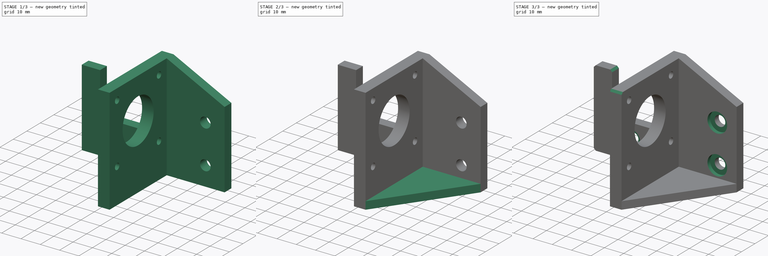
[diagram: build sequence overview — one tinted view per stage of 3, left to right]
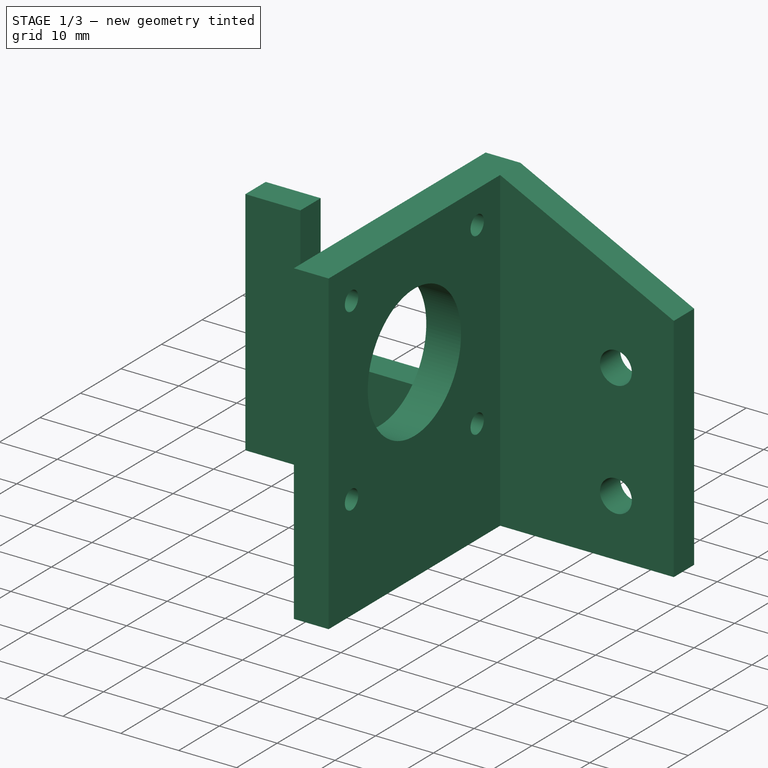
[diagram: stage 1 of 3 — iso view after this stage's code; geometry added in this stage tinted green]
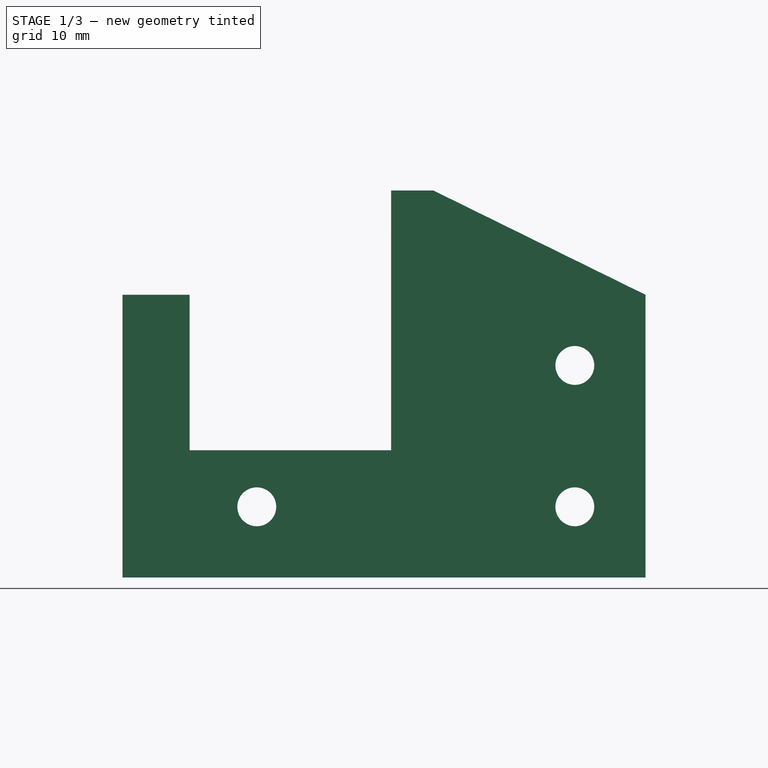
[diagram: stage 1 of 3 — front view after this stage's code; geometry added in this stage tinted green]
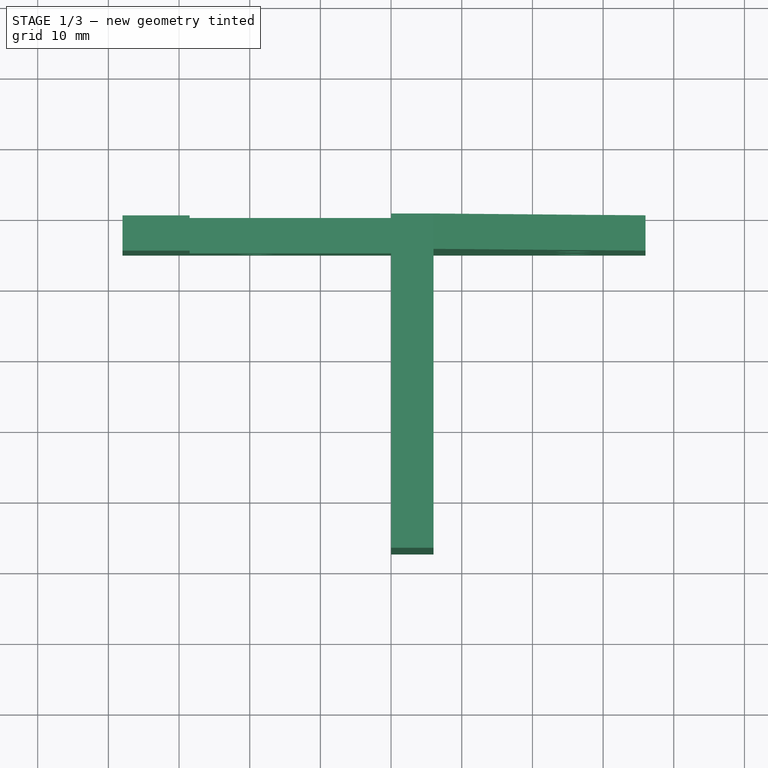
[diagram: stage 1 of 3 — top view after this stage's code; geometry added in this stage tinted green]
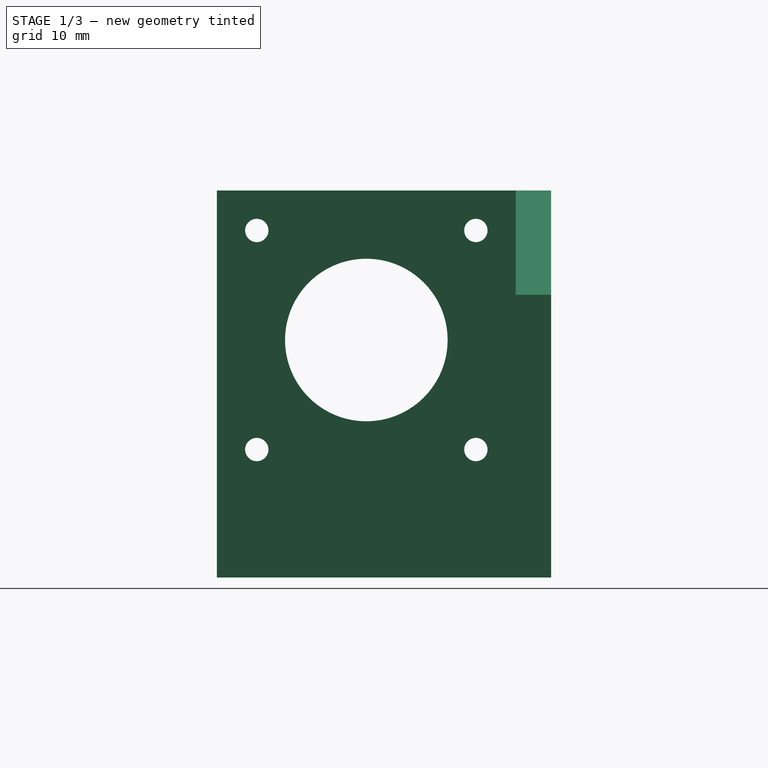
[diagram: stage 1 of 3 — right view after this stage's code; geometry added in this stage tinted green]
FCSTD DOCUMENT  (FreeCAD 0.18R4 (GitTag))
Label: _Y_Motor_Mount
License: All rights reserved
LicenseURL: http://en.wikipedia.org/wiki/All_rights_reserved
objects: Sketcher::SketchObject×4, PartDesign::Pad×3, PartDesign::Pocket×1, PartDesign::Chamfer×1, PartDesign::Body×1
note: 14 computed .brp shape members not serialized (recipe doc carries the construction recipe); baked Part::Feature solids carry a one-line shape summary decoded from their .brp

FEATURE [Sketcher::SketchObject] Sketch005
  MapMode = 5
  Placement = pos=(0,0,0) rot=(1,0,0;1.5708rad)
  Support = -> [XZ_Plane039]
  expr: Constraints[21] = Sketch003.Constraints.hight
  sketch-geometry (14):
    g0: LineSegment StartX=-38 StartY=40 StartZ=0 EndX=-28.5 EndY=40 EndZ=0
    g1: LineSegment StartX=-28.5 StartY=40 StartZ=0 EndX=-28.5 EndY=18 EndZ=0
    g2: LineSegment StartX=-28.5 StartY=18 StartZ=0 EndX=0 EndY=18 EndZ=0
    g3: LineSegment StartX=0 StartY=18 StartZ=0 EndX=0 EndY=54.75 EndZ=0
    g4: LineSegment StartX=0 StartY=54.75 StartZ=0 EndX=6 EndY=54.75 EndZ=0
    g5: LineSegment StartX=6 StartY=54.75 StartZ=0 EndX=36 EndY=40 EndZ=0
    g6: LineSegment StartX=36 StartY=40 StartZ=0 EndX=36 EndY=0 EndZ=0
    g7: LineSegment StartX=36 StartY=0 StartZ=0 EndX=-38 EndY=0 EndZ=0
    g8: LineSegment StartX=-38 StartY=0 StartZ=0 EndX=-38 EndY=40 EndZ=0
    g9: LineSegment [constr] StartX=-19 StartY=10 StartZ=0 EndX=26 EndY=10 EndZ=0
    g10: LineSegment [constr] StartX=26 StartY=10 StartZ=0 EndX=26 EndY=30 EndZ=0
    g11: Circle CenterX=-19 CenterY=10 CenterZ=0 NormalX=0 NormalY=0 NormalZ=1 AngleXU=0 Radius=2.75
    g12: Circle CenterX=26 CenterY=30 CenterZ=0 NormalX=0 NormalY=0 NormalZ=1 AngleXU=0 Radius=2.75
    g13: Circle CenterX=26 CenterY=10 CenterZ=0 NormalX=0 NormalY=0 NormalZ=1 AngleXU=0 Radius=2.75
  constraints (40):
    c: Horizontal(g0)
    c: Coincident(g0,g1)
    c: Coincident(g1,g2)
    c: Coincident(g2,g3)
    c: Vertical(g3)
    c: Coincident(g3,g4)
    c: Coincident(g4,g5)
    c: Coincident(g5,g6)
    c: PointOnObject(g6,g-1)
    c: Vertical(g6)
    c: Coincident(g6,g7)
    c: Horizontal(g7)
    c: Coincident(g7,g8)
    c: Coincident(g8,g0)
    c: Vertical(g8)
    c: Vertical(g1)
    c: Horizontal(g2)
    c: Horizontal(g4)
    c: PointOnObject(g2,g-2)
    c: DistanceY(g6,g6) = 40
    c: DistanceX(g4,g4) = 6
    c: DistanceY(g6,g4) = 54.75
    c: Horizontal(g9)
    c: DistanceX(g-1,g9) = 26
    c: DistanceX(g-1,g6) = 36
    c: DistanceX(g7,g-1) = 38
    c: DistanceX(g9,g-1) = 19
    c: Coincident(g10,g9)
    c: Vertical(g10)
    c: DistanceY(g10,g10) = 20
    c: DistanceY(g6,g9) = 10
    c: Coincident(g11,g9)
    c: Coincident(g12,g10)
    c: Coincident(g13,g9)
    c: Diameter(g11) = 5.5
    c: Equal(g11,g13)
    c: Equal(g11,g12)
    c: Equal(g6,g8)
    c: DistanceX(g0,g0) = 9.5
    c: DistanceY(g1,g1) = 22
FEATURE [Sketcher::SketchObject] Sketch003
  MapMode = 5
  Placement = pos=(0,0,0) rot=(0.57735,0.57735,0.57735;2.0944rad)
  Support = -> [YZ_Plane039]
  sketch-geometry (15):
    g0: LineSegment StartX=-47.3 StartY=54.75 StartZ=0 EndX=0 EndY=54.75 EndZ=0
    g1: LineSegment StartX=0 StartY=54.75 StartZ=0 EndX=0 EndY=0 EndZ=0
    g2: LineSegment StartX=0 StartY=0 StartZ=0 EndX=-47.3 EndY=0 EndZ=0
    g3: LineSegment StartX=-47.3 StartY=0 StartZ=0 EndX=-47.3 EndY=54.75 EndZ=0
    g4: LineSegment [constr] StartX=-41.65 StartY=49.1 StartZ=0 EndX=-10.65 EndY=49.1 EndZ=0
    g5: LineSegment [constr] StartX=-10.65 StartY=49.1 StartZ=0 EndX=-10.65 EndY=18.1 EndZ=0
    g6: LineSegment [constr] StartX=-10.65 StartY=18.1 StartZ=0 EndX=-41.65 EndY=18.1 EndZ=0
    g7: LineSegment [constr] StartX=-41.65 StartY=18.1 StartZ=0 EndX=-41.65 EndY=49.1 EndZ=0
    g8: LineSegment [constr] StartX=-41.65 StartY=49.1 StartZ=0 EndX=-10.65 EndY=18.1 EndZ=0
    g9: LineSegment [constr] StartX=-41.65 StartY=18.1 StartZ=0 EndX=-10.65 EndY=49.1 EndZ=0
    g10: Circle CenterX=-26.15 CenterY=33.6 CenterZ=0 NormalX=0 NormalY=0 NormalZ=1 AngleXU=0 Radius=11.5
    g11: Circle CenterX=-41.65 CenterY=49.1 CenterZ=0 NormalX=0 NormalY=0 NormalZ=1 AngleXU=0 Radius=1.65
    g12: Circle CenterX=-10.65 CenterY=49.1 CenterZ=0 NormalX=0 NormalY=0 NormalZ=1 AngleXU=0 Radius=1.65
    g13: Circle CenterX=-41.65 CenterY=18.1 CenterZ=0 NormalX=0 NormalY=0 NormalZ=1 AngleXU=0 Radius=1.65
    g14: Circle CenterX=-10.65 CenterY=18.1 CenterZ=0 NormalX=0 NormalY=0 NormalZ=1 AngleXU=0 Radius=1.65
  constraints (38):
    c: Coincident(g0,g1)
    c: Coincident(g1,g2)
    c: Coincident(g2,g3)
    c: Coincident(g3,g0)
    c: Horizontal(g0)
    c: Horizontal(g2)
    c: Vertical(g1)
    c: Vertical(g3)
    c: DistanceX(g0,g0) = 47.3
    c: DistanceY(g1,g1) = 54.75  'hight'
    c: Coincident(g4,g5)
    c: Coincident(g5,g6)
    c: Coincident(g6,g7)
    c: Coincident(g7,g4)
    c: Horizontal(g4)
    c: Horizontal(g6)
    c: Vertical(g5)
    c: Vertical(g7)
    c: Coincident(g1,g-1)
    c: Equal(g6,g7)
    c: Coincident(g8,g4)
    c: Coincident(g8,g5)
    c: Coincident(g9,g6)
    c: Coincident(g9,g4)
    c: PointOnObject(g10,g8)
    c: PointOnObject(g10,g9)
    c: Diameter(g10) = 23
    c: Coincident(g11,g4)
    c: Coincident(g12,g4)
    c: Coincident(g13,g6)
    c: Coincident(g14,g5)
    c: Equal(g14,g12)
    c: Equal(g12,g11)
    c: Equal(g11,g13)
    c: Diameter(g13) = 3.3
    c: DistanceX(g0,g10) = 21.15
    c: DistanceY(g10,g0) = 21.15
    c: DistanceX(g6,g6) = 31
FEATURE [Sketcher::SketchObject] Sketch004
  MapMode = 5
  Support = -> [XY_Plane039]
  sketch-geometry (6):
    g0: LineSegment StartX=-19 StartY=0 StartZ=0 EndX=-19 EndY=-5.01716 EndZ=0
    g1: LineSegment StartX=-19 StartY=-5.01716 StartZ=0 EndX=0 EndY=-47.3 EndZ=0
    g2: LineSegment StartX=0 StartY=-47.3 StartZ=0 EndX=6 EndY=-47.3 EndZ=0
    g3: LineSegment StartX=6 StartY=-47.3 StartZ=0 EndX=36 EndY=-5 EndZ=0
    g4: LineSegment StartX=36 StartY=-5 StartZ=0 EndX=36 EndY=0 EndZ=0
    g5: LineSegment StartX=36 StartY=0 StartZ=0 EndX=-19 EndY=0 EndZ=0
  constraints (17):
    c: PointOnObject(g0,g-1)
    c: Coincident(g0,g1)
    c: PointOnObject(g1,g-2)
    c: Coincident(g1,g2)
    c: Horizontal(g2)
    c: Coincident(g2,g3)
    c: Coincident(g3,g4)
    c: PointOnObject(g4,g-1)
    c: Coincident(g4,g5)
    c: DistanceX(g2,g2) = 6
    c: DistanceY(g1,g-1) = 47.3
    c: Vertical(g0)
    c: Vertical(g4)
    c: Coincident(g5,g0)
    c: DistanceX(g-1,g4) = 36
    c: DistanceY(g3,g4) = 5
    c: DistanceX(g0,g-1) = 19
FEATURE [PartDesign::Pad] Pad001
  Length = 6
  Length2 = 100
  Placement = pos=(0,0,0) rot=(0.57735,0.57735,0.57735;2.0944rad)
  Profile = -> Sketch003
  Type = 0
FEATURE [PartDesign::Pad] Pad003
  BaseFeature = -> Pad001
  Length = 5
  Length2 = 100
  Placement = pos=(0,0,0) rot=(0.57735,0.57735,0.57735;2.0944rad)
  Profile = -> Sketch005
  Type = 0
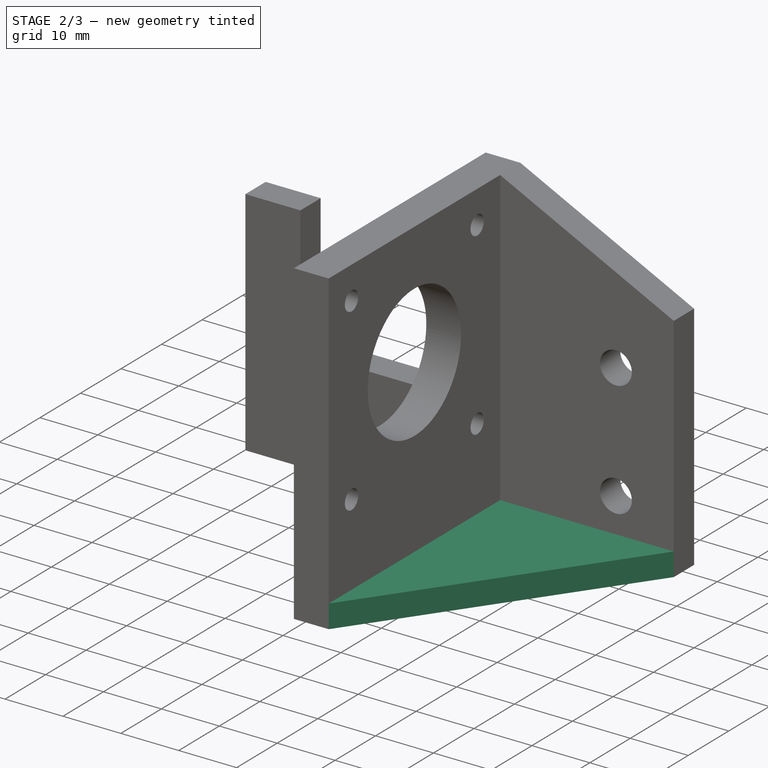
[diagram: stage 2 of 3 — iso view after this stage's code; geometry added in this stage tinted green]
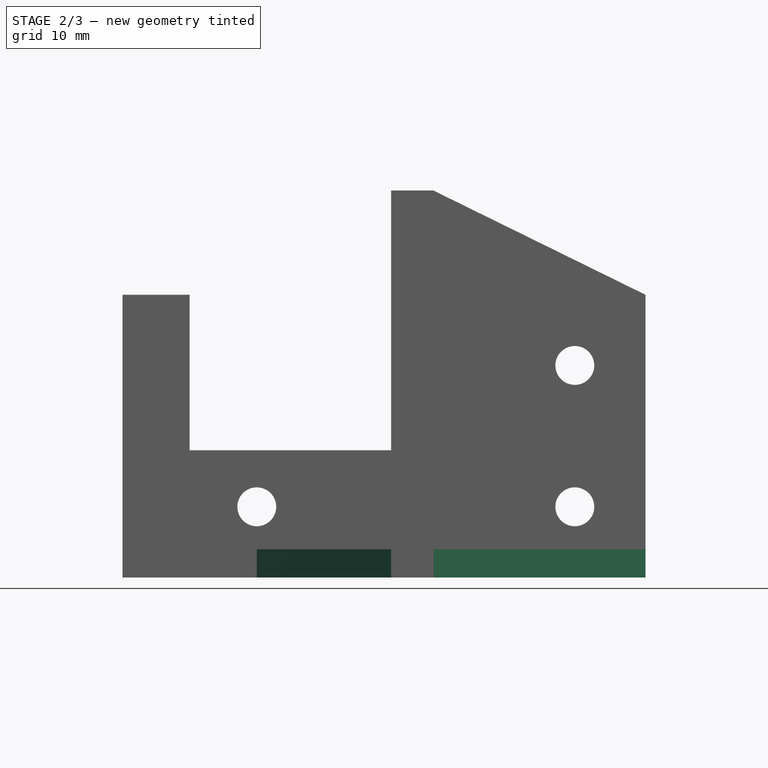
[diagram: stage 2 of 3 — front view after this stage's code; geometry added in this stage tinted green]
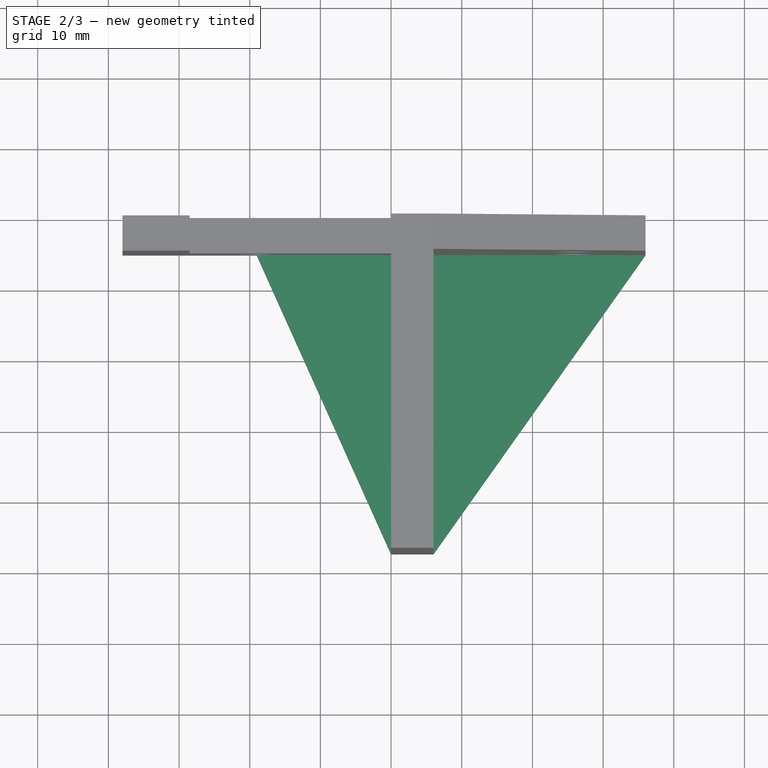
[diagram: stage 2 of 3 — top view after this stage's code; geometry added in this stage tinted green]
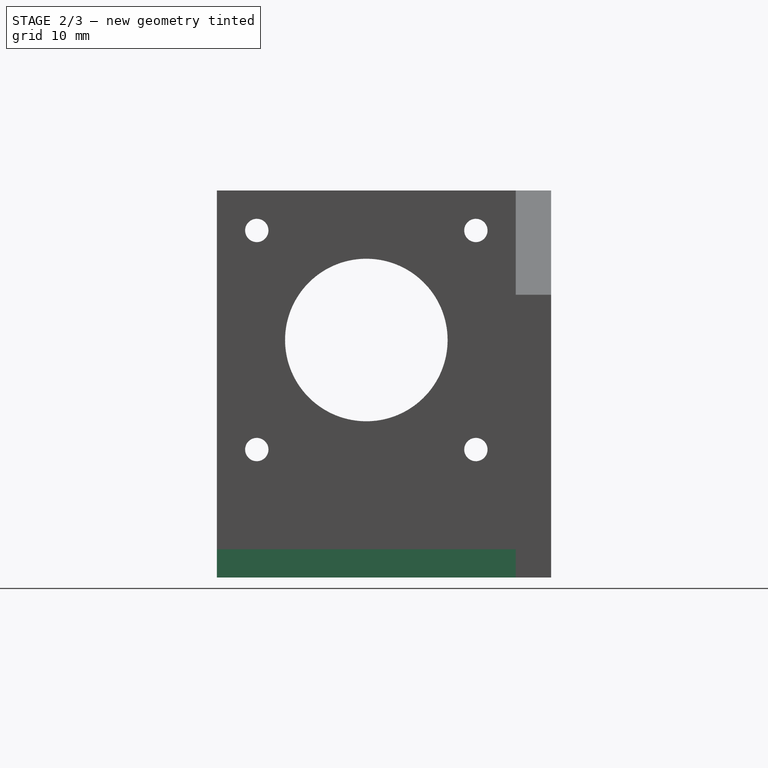
[diagram: stage 2 of 3 — right view after this stage's code; geometry added in this stage tinted green]
FEATURE [PartDesign::Pad] Pad002
  BaseFeature = -> Pad003
  Length = 4
  Length2 = 100
  Placement = pos=(0,0,0) rot=(0.57735,0.57735,0.57735;2.0944rad)
  Profile = -> Sketch004
  Type = 0
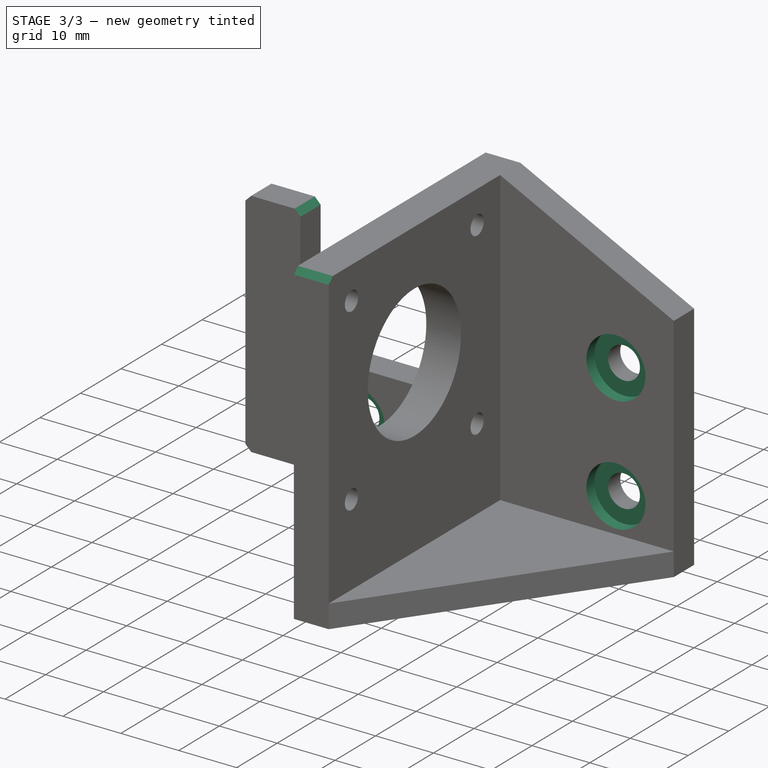
[diagram: stage 3 of 3 — iso view after this stage's code; geometry added in this stage tinted green]
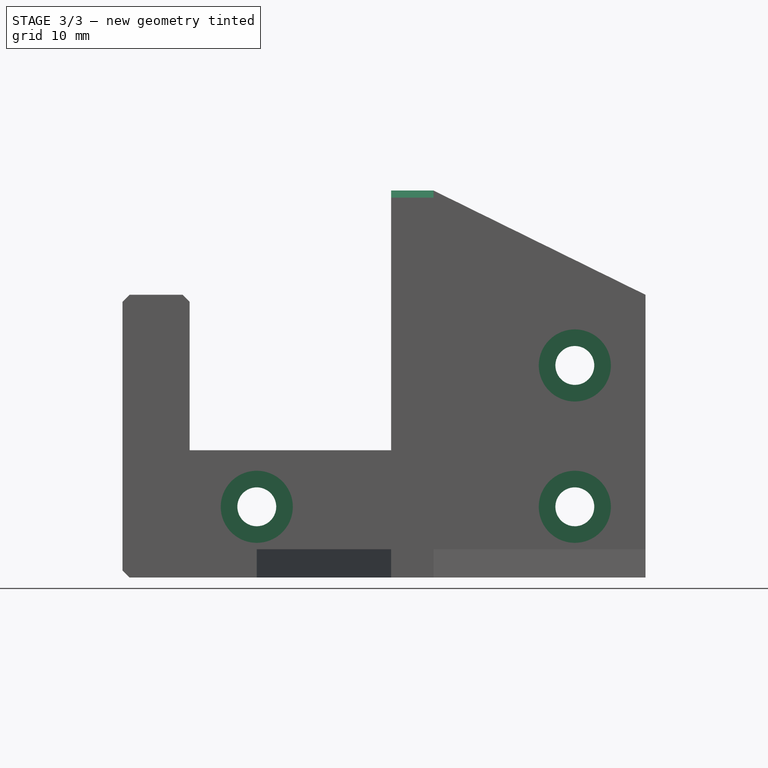
[diagram: stage 3 of 3 — front view after this stage's code; geometry added in this stage tinted green]
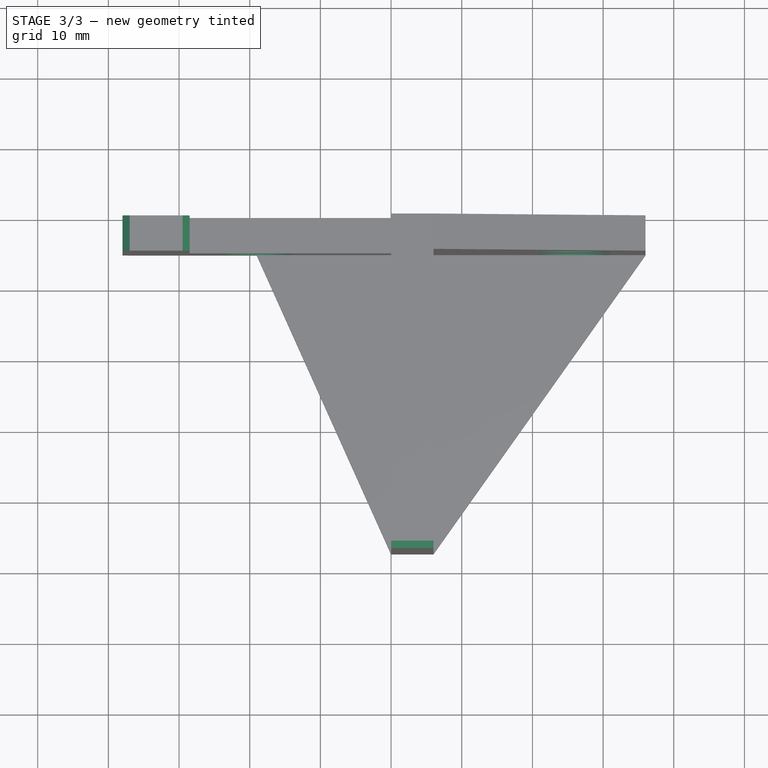
[diagram: stage 3 of 3 — top view after this stage's code; geometry added in this stage tinted green]
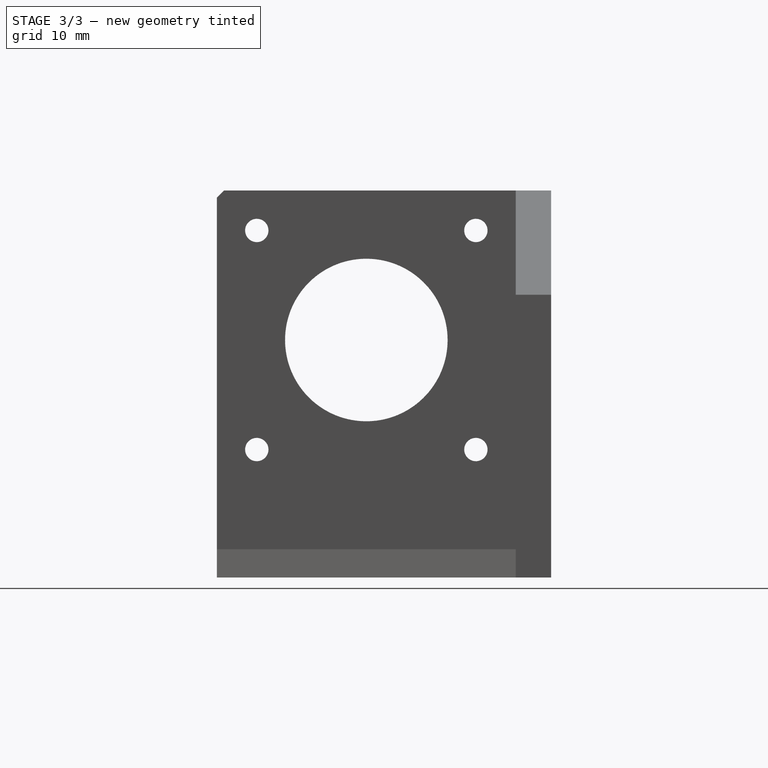
[diagram: stage 3 of 3 — right view after this stage's code; geometry added in this stage tinted green]
FEATURE [Sketcher::SketchObject] Sketch
  AttachmentOffset = pos=(0,0,5) rot=(0,0,1;0rad)
  ExternalGeometry = -> [Pad002]
  MapMode = 5
  Placement = pos=(0,-5,-1.1e-15) rot=(1,0,0;1.5708rad)
  Support = -> [XZ_Plane039]
  sketch-geometry (3):
    g0: Circle CenterX=-19 CenterY=10 CenterZ=0 NormalX=0 NormalY=0 NormalZ=1 AngleXU=0 Radius=5.1
    g1: Circle CenterX=26 CenterY=30 CenterZ=0 NormalX=0 NormalY=0 NormalZ=1 AngleXU=0 Radius=5.1
    g2: Circle CenterX=26 CenterY=10 CenterZ=0 NormalX=0 NormalY=0 NormalZ=1 AngleXU=0 Radius=5.1
  constraints (6):
    c: Coincident(g0,g-3)
    c: Coincident(g1,g-4)
    c: Coincident(g2,g-5)
    c: Equal(g0,g1)
    c: Equal(g1,g2)
    c: Diameter(g0) = 10.2
FEATURE [PartDesign::Pocket] Pocket
  BaseFeature = -> Pad002
  Length = 2
  Length2 = 100
  Placement = pos=(0,0,0) rot=(0.57735,0.57735,0.57735;2.0944rad)
  Profile = -> Sketch
  Type = 0
FEATURE [PartDesign::Chamfer] Chamfer
  Base = -> Pocket [Edge4,Edge65,Edge63,Edge61]
  BaseFeature = -> Pocket
  Placement = pos=(0,0,0) rot=(0.57735,0.57735,0.57735;2.0944rad)
  Size = 1
FEATURE [PartDesign::Body] Body001082  label="Y_MotorMount"
  Group = -> [Sketch003,Pad001,Sketch005,Pad003,Sketch004,Pad002,Sketch,Pocket,Chamfer]
  Origin = -> Origin039
  Placement = pos=(-15,170,-40) rot=(0,0,1;0rad)
  Tip = -> Chamfer
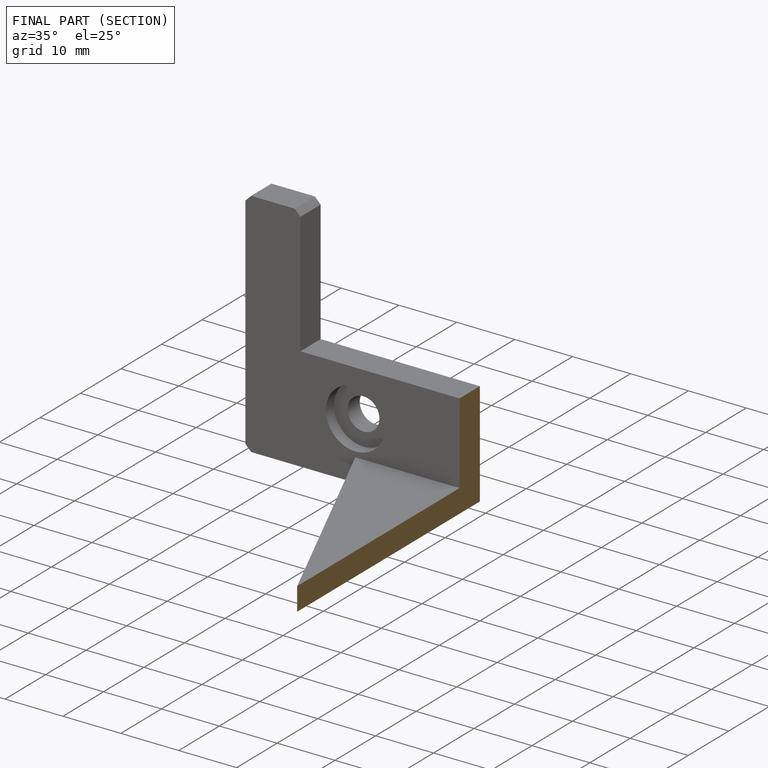
[diagram: finished part — half-section view (interior)]
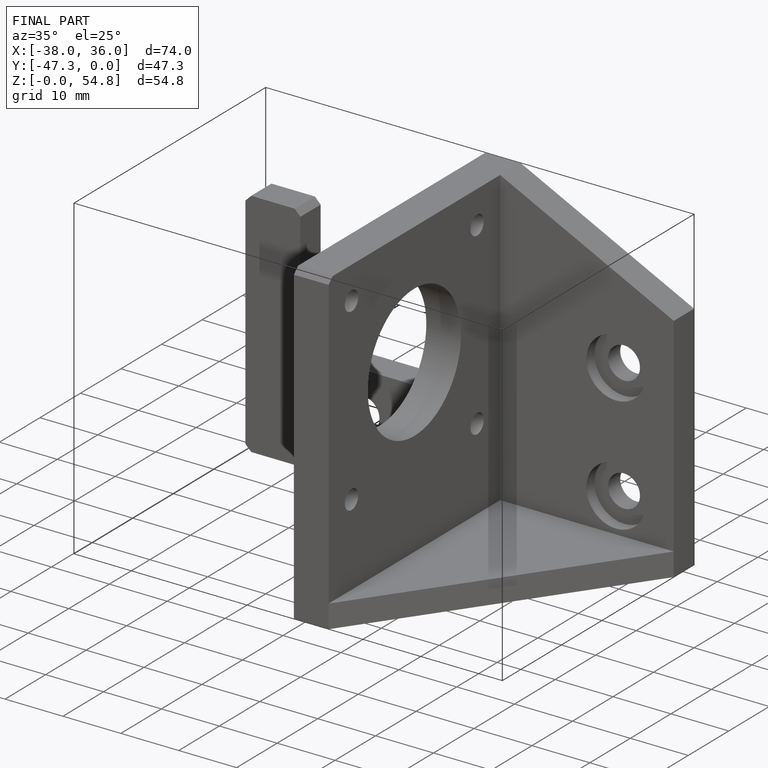
[diagram: finished part — iso view with bounding-box wireframe]
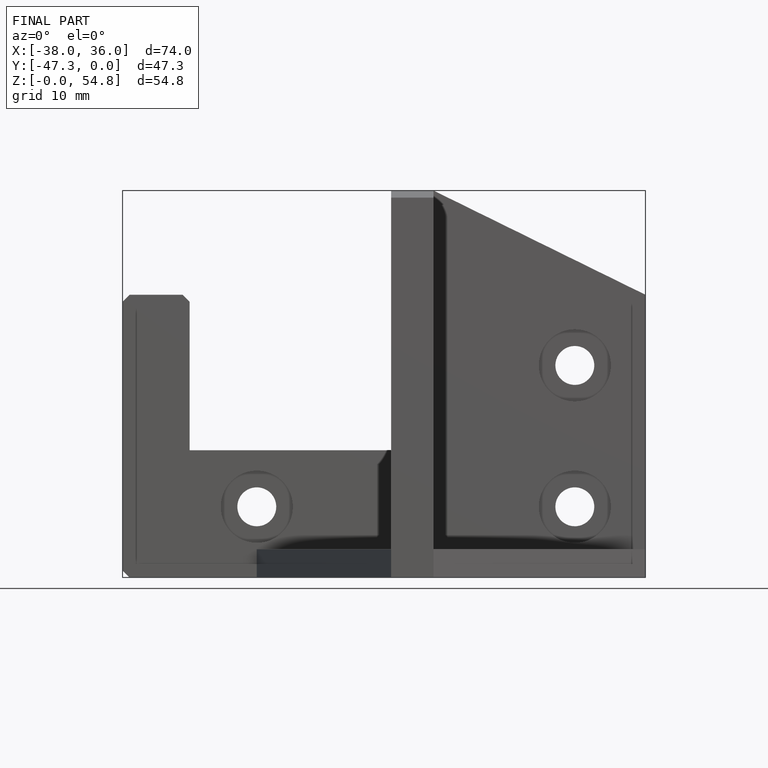
[diagram: finished part — front view with bounding-box wireframe]
